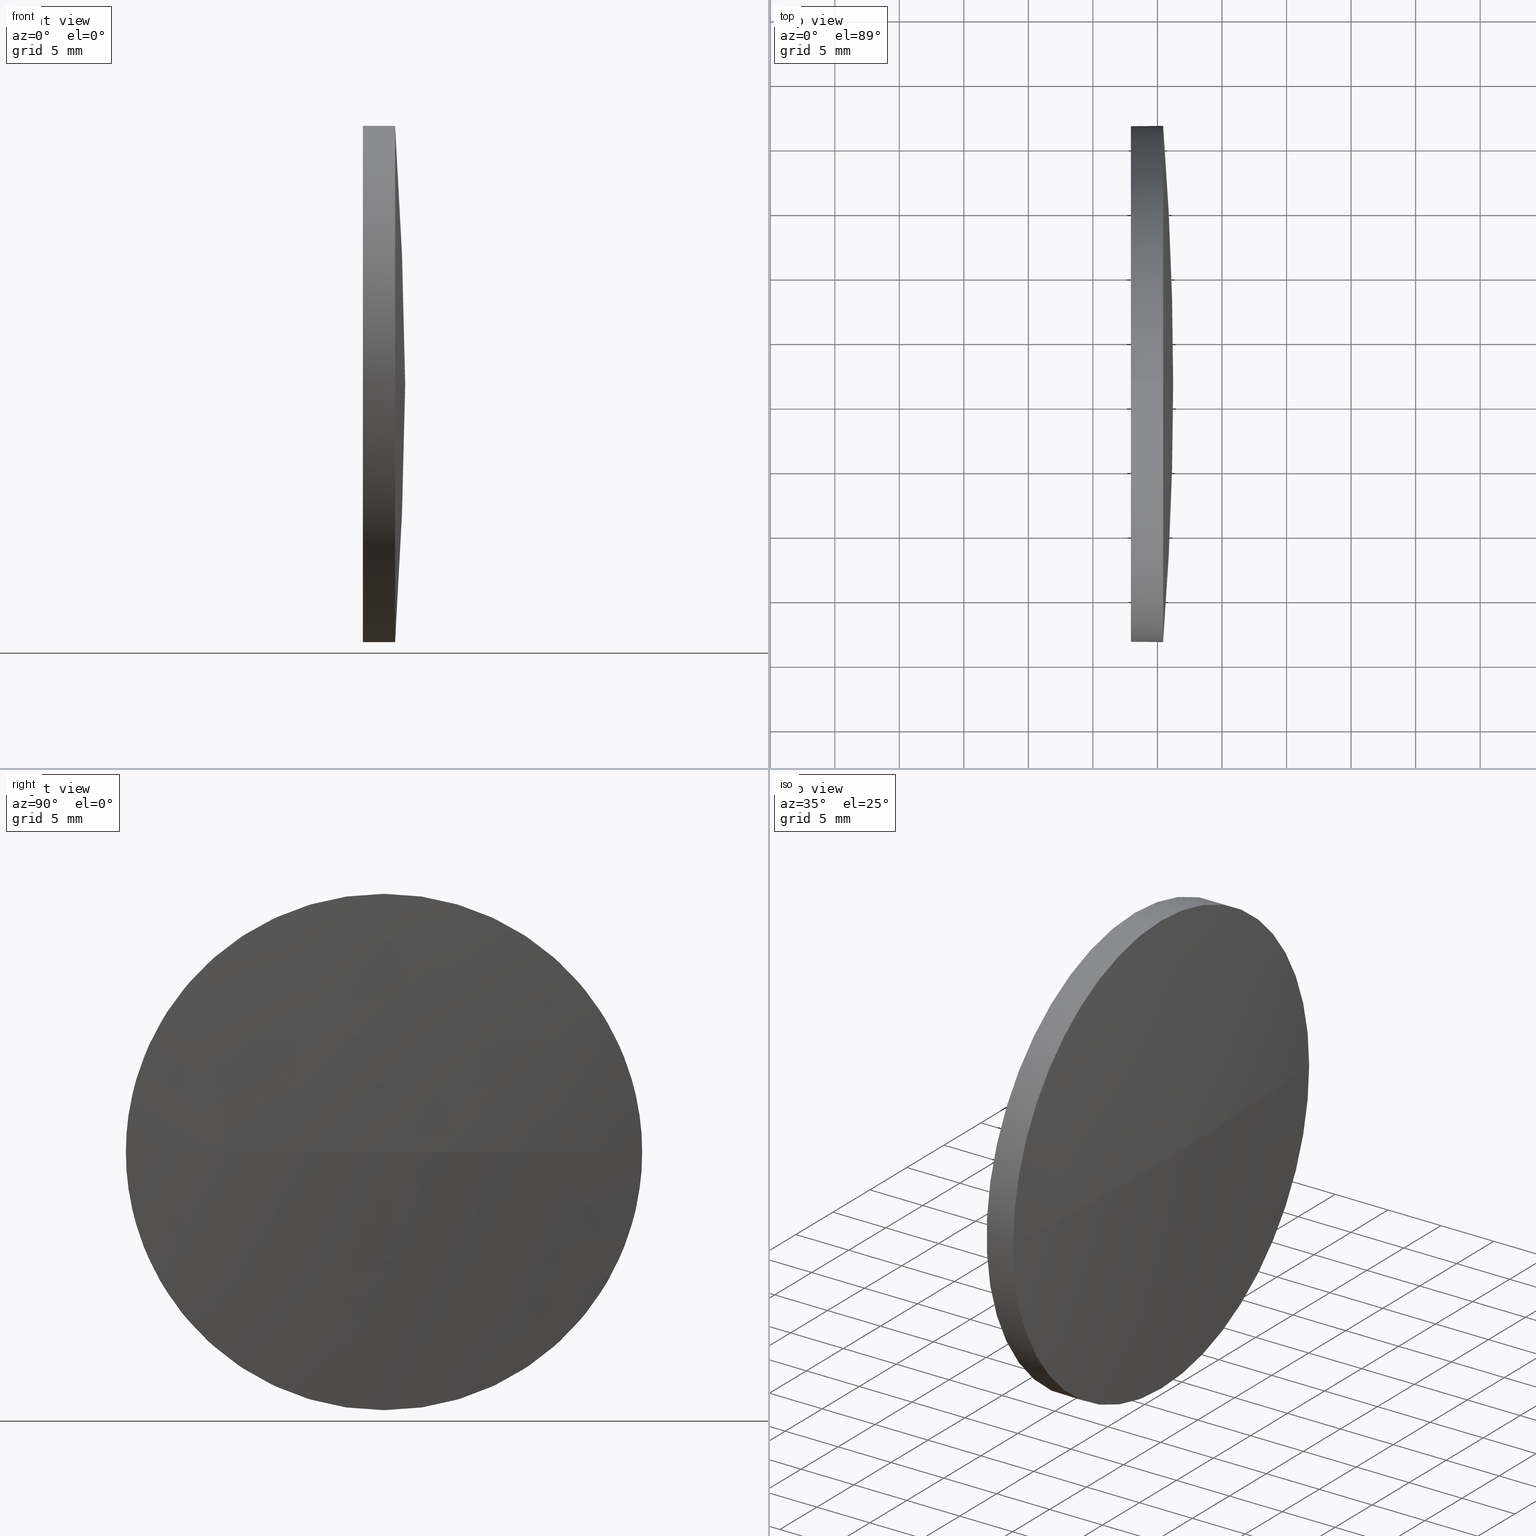
[diagram: canonical four-view strip — front | top / right | iso, engineering-drawing reading convention]
A machine part, canonical four-view strip (front | top / right | iso — engineering-drawing reading convention). The complete STEP part file that produces these views, byte-faithful:
ISO-10303-21;
HEADER;
FILE_DESCRIPTION (( 'STEP AP214' ),
    '1' );
FILE_NAME ('100149.STEP',
    '2019-05-15T08:41:53',
    ( '' ),
    ( '' ),
    'SwSTEP 2.0',
    'SolidWorks 2016',
    '' );
FILE_SCHEMA (( 'AUTOMOTIVE_DESIGN' ));
ENDSEC;

DATA;
#1 = SHAPE_DEFINITION_REPRESENTATION ( #131, #34 ) ;
#2 = ORIENTED_EDGE ( 'NONE', *, *, #169, .T. ) ;
#3 = SURFACE_STYLE_USAGE ( .BOTH. , #67 ) ;
#4 = EDGE_CURVE ( 'NONE', #172, #104, #97, .T. ) ;
#5 = VERTEX_POINT ( 'NONE', #10 ) ;
#6 = COLOUR_RGB ( '',1.000000000000000000, 1.000000000000000000, 1.000000000000000000 ) ;
#7 =( NAMED_UNIT ( * ) SI_UNIT ( $, .STERADIAN. ) SOLID_ANGLE_UNIT ( ) );
#8 = VECTOR ( 'NONE', #120, 1000.000000000000000 ) ;
#9 = DIRECTION ( 'NONE',  ( -1.000000000000000000, -0.0000000000000000000, -0.0000000000000000000 ) ) ;
#10 = CARTESIAN_POINT ( 'NONE',  ( 1332.934272124736000, 411.5874298332859700, -19.99999999999996100 ) ) ;
#11 = EDGE_CURVE ( 'NONE', #135, #5, #179, .T. ) ;
#12 = ADVANCED_FACE ( 'NONE', ( #132 ), #21, .T. ) ;
#13 = PLANE ( 'NONE',  #83 ) ;
#14 = DIRECTION ( 'NONE',  ( 0.0000000000000000000, 0.0000000000000000000, 1.000000000000000000 ) ) ;
#15 = COLOUR_RGB ( '',1.000000000000000000, 1.000000000000000000, 1.000000000000000000 ) ;
#16 = PRODUCT_DEFINITION ( 'δ֪', '', #65, #100 ) ;
#17 = CARTESIAN_POINT ( 'NONE',  ( 1328.239728944158700, 411.5874298332859700, 0.0000000000000000000 ) ) ;
#18 = ORIENTED_EDGE ( 'NONE', *, *, #148, .T. ) ;
#19 = CARTESIAN_POINT ( 'NONE',  ( 1335.434272124735800, 411.5874298332859700, 19.99999999999996100 ) ) ;
#20 = DIRECTION ( 'NONE',  ( 0.0000000000000000000, 0.0000000000000000000, 1.000000000000000000 ) ) ;
#21 = CYLINDRICAL_SURFACE ( 'NONE', #32, 19.99999999999996100 ) ;
#22 = UNCERTAINTY_MEASURE_WITH_UNIT (LENGTH_MEASURE( 1.000000000000000100E-005 ), #81, 'distance_accuracy_value', 'NONE');
#23 = CARTESIAN_POINT ( 'NONE',  ( 1335.434272124735800, 431.5874298332856300, 0.0000000000000000000 ) ) ;
#24 = ORIENTED_EDGE ( 'NONE', *, *, #108, .T. ) ;
#25 =( GEOMETRIC_REPRESENTATION_CONTEXT ( 3 ) GLOBAL_UNCERTAINTY_ASSIGNED_CONTEXT ( ( #118 ) ) GLOBAL_UNIT_ASSIGNED_CONTEXT ( ( #137, #141, #48 ) ) REPRESENTATION_CONTEXT ( 'NONE', 'WORKASPACE' ) );
#26 = ORIENTED_EDGE ( 'NONE', *, *, #55, .F. ) ;
#27 = CIRCLE ( 'NONE', #91, 19.99999999999996100 ) ;
#28 = FILL_AREA_STYLE_COLOUR ( '', #6 ) ;
#29 = CARTESIAN_POINT ( 'NONE',  ( 1332.934272124736000, 411.5874298332859700, 0.0000000000000000000 ) ) ;
#30 = ORIENTED_EDGE ( 'NONE', *, *, #160, .T. ) ;
#31 = DIRECTION ( 'NONE',  ( 0.0000000000000000000, 1.000000000000000000, 1.224646799147353200E-016 ) ) ;
#32 = AXIS2_PLACEMENT_3D ( 'NONE', #144, #51, #113 ) ;
#33 = DIRECTION ( 'NONE',  ( 0.0000000000000000000, 0.0000000000000000000, 1.000000000000000000 ) ) ;
#34 = ADVANCED_BREP_SHAPE_REPRESENTATION ( '100149', ( #58, #105 ), #25 ) ;
#35 = ADVANCED_FACE ( 'NONE', ( #124 ), #13, .F. ) ;
#36 = EDGE_LOOP ( 'NONE', ( #166, #164, #53, #50, #71 ) ) ;
#37 = DIRECTION ( 'NONE',  ( 0.0000000000000000000, 1.000000000000000000, 0.0000000000000000000 ) ) ;
#38 = CIRCLE ( 'NONE', #115, 19.99999999999996100 ) ;
#39 = CARTESIAN_POINT ( 'NONE',  ( 1335.434272124735800, 411.5874298332859700, 0.0000000000000000000 ) ) ;
#40 =( NAMED_UNIT ( * ) SI_UNIT ( $, .STERADIAN. ) SOLID_ANGLE_UNIT ( ) );
#41 = LINE ( 'NONE', #171, #8 ) ;
#42 = AXIS2_PLACEMENT_3D ( 'NONE', #125, #54, #52 ) ;
#43 = PRODUCT ( '100149', '100149', '', ( #101 ) ) ;
#44 = DIRECTION ( 'NONE',  ( 0.0000000000000000000, 0.0000000000000000000, 1.000000000000000000 ) ) ;
#45 = DIRECTION ( 'NONE',  ( 0.0000000000000000000, 1.000000000000000000, 0.0000000000000000000 ) ) ;
#46 = DIRECTION ( 'NONE',  ( -0.0000000000000000000, 0.0000000000000000000, -1.000000000000000000 ) ) ;
#47 = ORIENTED_EDGE ( 'NONE', *, *, #169, .F. ) ;
#48 =( NAMED_UNIT ( * ) SI_UNIT ( $, .STERADIAN. ) SOLID_ANGLE_UNIT ( ) );
#49 = CARTESIAN_POINT ( 'NONE',  ( 1328.239728944158700, 411.5874298332859700, -19.99999999999996100 ) ) ;
#50 = ORIENTED_EDGE ( 'NONE', *, *, #108, .F. ) ;
#51 = DIRECTION ( 'NONE',  ( -1.000000000000000000, -0.0000000000000000000, -0.0000000000000000000 ) ) ;
#52 = DIRECTION ( 'NONE',  ( 0.0000000000000000000, 0.0000000000000000000, 1.000000000000000000 ) ) ;
#53 = ORIENTED_EDGE ( 'NONE', *, *, #148, .F. ) ;
#54 = DIRECTION ( 'NONE',  ( -1.000000000000000000, -0.0000000000000000000, -0.0000000000000000000 ) ) ;
#55 = EDGE_CURVE ( 'NONE', #177, #172, #59, .T. ) ;
#56 = ADVANCED_FACE ( 'NONE', ( #61 ), #88, .T. ) ;
#57 = DIRECTION ( 'NONE',  ( -1.000000000000000000, -0.0000000000000000000, -0.0000000000000000000 ) ) ;
#58 = MANIFOLD_SOLID_BREP ( '��ת2', #98 ) ;
#59 = CIRCLE ( 'NONE', #158, 19.99999999999996100 ) ;
#60 = VERTEX_POINT ( 'NONE', #109 ) ;
#61 = FACE_OUTER_BOUND ( 'NONE', #143, .T. ) ;
#62 = DIRECTION ( 'NONE',  ( -1.000000000000000000, -0.0000000000000000000, -0.0000000000000000000 ) ) ;
#63 = CARTESIAN_POINT ( 'NONE',  ( 1079.414015714479800, 411.5874298332847200, 0.0000000000000000000 ) ) ;
#64 = EDGE_LOOP ( 'NONE', ( #18, #85 ) ) ;
#65 = PRODUCT_DEFINITION_FORMATION_WITH_SPECIFIED_SOURCE ( '�κ�', '', #43, .NOT_KNOWN. ) ;
#66 = DIRECTION ( 'NONE',  ( -0.0000000000000000000, 0.0000000000000000000, -1.000000000000000000 ) ) ;
#67 = SURFACE_SIDE_STYLE ('',( #138 ) ) ;
#68 = ORIENTED_EDGE ( 'NONE', *, *, #117, .F. ) ;
#69 = FACE_OUTER_BOUND ( 'NONE', #36, .T. ) ;
#70 = CARTESIAN_POINT ( 'NONE',  ( 1332.934272124736000, 411.5874298332859700, 0.0000000000000000000 ) ) ;
#71 = ORIENTED_EDGE ( 'NONE', *, *, #4, .T. ) ;
#72 = AXIS2_PLACEMENT_3D ( 'NONE', #184, #9, #152 ) ;
#73 = FILL_AREA_STYLE ('',( #28 ) ) ;
#74 = DIRECTION ( 'NONE',  ( -1.000000000000000000, -0.0000000000000000000, -0.0000000000000000000 ) ) ;
#75 = ORIENTED_EDGE ( 'NONE', *, *, #160, .F. ) ;
#76 = AXIS2_PLACEMENT_3D ( 'NONE', #63, #119, #182 ) ;
#77 = DIRECTION ( 'NONE',  ( -1.000000000000000000, -0.0000000000000000000, -0.0000000000000000000 ) ) ;
#78 = SPHERICAL_SURFACE ( 'NONE', #156, 256.8002564102561100 ) ;
#79 = CARTESIAN_POINT ( 'NONE',  ( 1335.434272124735800, 391.5874298332850600, -2.449293598294665500E-015 ) ) ;
#80 = CIRCLE ( 'NONE', #42, 19.99999999999996100 ) ;
#81 =( LENGTH_UNIT ( ) NAMED_UNIT ( * ) SI_UNIT ( .MILLI., .METRE. ) );
#82 = DIRECTION ( 'NONE',  ( 0.0000000000000000000, 0.0000000000000000000, -1.000000000000000000 ) ) ;
#83 = AXIS2_PLACEMENT_3D ( 'NONE', #70, #173, #82 ) ;
#84 =( GEOMETRIC_REPRESENTATION_CONTEXT ( 3 ) GLOBAL_UNCERTAINTY_ASSIGNED_CONTEXT ( ( #175 ) ) GLOBAL_UNIT_ASSIGNED_CONTEXT ( ( #181, #87, #7 ) ) REPRESENTATION_CONTEXT ( 'NONE', 'WORKASPACE' ) );
#85 = ORIENTED_EDGE ( 'NONE', *, *, #96, .T. ) ;
#86 = EDGE_CURVE ( 'NONE', #104, #135, #80, .T. ) ;
#87 =( NAMED_UNIT ( * ) PLANE_ANGLE_UNIT ( ) SI_UNIT ( $, .RADIAN. ) );
#88 = SPHERICAL_SURFACE ( 'NONE', #116, 256.8002564102561100 ) ;
#89 = CARTESIAN_POINT ( 'NONE',  ( 1332.934272124736000, 411.5874298332859700, 0.0000000000000000000 ) ) ;
#90 = ORIENTED_EDGE ( 'NONE', *, *, #11, .F. ) ;
#91 = AXIS2_PLACEMENT_3D ( 'NONE', #29, #74, #140 ) ;
#92 = DIRECTION ( 'NONE',  ( -1.000000000000000000, -0.0000000000000000000, -0.0000000000000000000 ) ) ;
#93 = ORIENTED_EDGE ( 'NONE', *, *, #86, .F. ) ;
#94 =( NAMED_UNIT ( * ) PLANE_ANGLE_UNIT ( ) SI_UNIT ( $, .RADIAN. ) );
#95 = PRESENTATION_STYLE_ASSIGNMENT (( #3 ) ) ;
#96 = EDGE_CURVE ( 'NONE', #5, #161, #27, .T. ) ;
#97 = CIRCLE ( 'NONE', #139, 19.99999999999996100 ) ;
#98 = CLOSED_SHELL ( 'NONE', ( #129, #112, #56, #12, #35 ) ) ;
#99 = PRODUCT_RELATED_PRODUCT_CATEGORY ( 'part', '', ( #43 ) ) ;
#100 = PRODUCT_DEFINITION_CONTEXT ( 'detailed design', #102, 'design' ) ;
#101 = PRODUCT_CONTEXT ( 'NONE', #150, 'mechanical' ) ;
#102 = APPLICATION_CONTEXT ( 'automotive_design' ) ;
#103 = APPLICATION_PROTOCOL_DEFINITION ( 'draft international standard', 'automotive_design', 1998, #102 ) ;
#104 = VERTEX_POINT ( 'NONE', #23 ) ;
#105 = AXIS2_PLACEMENT_3D ( 'NONE', #136, #44, #163 ) ;
#106 = FACE_OUTER_BOUND ( 'NONE', #183, .T. ) ;
#107 = CARTESIAN_POINT ( 'NONE',  ( 1079.414015714479800, 411.5874298332847200, 0.0000000000000000000 ) ) ;
#108 = EDGE_CURVE ( 'NONE', #172, #161, #41, .T. ) ;
#109 = CARTESIAN_POINT ( 'NONE',  ( 1336.214272124735800, 411.5874298332847200, 0.0000000000000000000 ) ) ;
#110 = ORIENTED_EDGE ( 'NONE', *, *, #117, .T. ) ;
#111 = CYLINDRICAL_SURFACE ( 'NONE', #167, 19.99999999999996100 ) ;
#112 = ADVANCED_FACE ( 'NONE', ( #106 ), #78, .T. ) ;
#113 = DIRECTION ( 'NONE',  ( 0.0000000000000000000, 0.0000000000000000000, 1.000000000000000000 ) ) ;
#114 = DIRECTION ( 'NONE',  ( -1.000000000000000000, -0.0000000000000000000, -0.0000000000000000000 ) ) ;
#115 = AXIS2_PLACEMENT_3D ( 'NONE', #89, #77, #33 ) ;
#116 = AXIS2_PLACEMENT_3D ( 'NONE', #130, #66, #37 ) ;
#117 = EDGE_CURVE ( 'NONE', #60, #177, #157, .T. ) ;
#118 = UNCERTAINTY_MEASURE_WITH_UNIT (LENGTH_MEASURE( 1.000000000000000100E-005 ), #137, 'distance_accuracy_value', 'NONE');
#119 = DIRECTION ( 'NONE',  ( -0.0000000000000000000, 0.0000000000000000000, 1.000000000000000000 ) ) ;
#120 = DIRECTION ( 'NONE',  ( -1.000000000000000000, -0.0000000000000000000, -0.0000000000000000000 ) ) ;
#121 = DIRECTION ( 'NONE',  ( 0.0000000000000000000, 1.224646799147353200E-016, -1.000000000000000000 ) ) ;
#122 = SURFACE_STYLE_FILL_AREA ( #73 ) ;
#123 = MECHANICAL_DESIGN_GEOMETRIC_PRESENTATION_REPRESENTATION (  '', ( #174 ), #147 ) ;
#124 = FACE_OUTER_BOUND ( 'NONE', #64, .T. ) ;
#125 = CARTESIAN_POINT ( 'NONE',  ( 1335.434272124735800, 411.5874298332859700, 0.0000000000000000000 ) ) ;
#126 = PRESENTATION_LAYER_ASSIGNMENT (  '', '', ( #134 ) ) ;
#127 = DIRECTION ( 'NONE',  ( 0.0000000000000000000, 0.0000000000000000000, 1.000000000000000000 ) ) ;
#128 = ORIENTED_EDGE ( 'NONE', *, *, #96, .F. ) ;
#129 = ADVANCED_FACE ( 'NONE', ( #69 ), #111, .T. ) ;
#130 = CARTESIAN_POINT ( 'NONE',  ( 1079.414015714479800, 411.5874298332847200, 0.0000000000000000000 ) ) ;
#131 = PRODUCT_DEFINITION_SHAPE ( 'NONE', 'NONE',  #16 ) ;
#132 = FACE_OUTER_BOUND ( 'NONE', #133, .T. ) ;
#133 = EDGE_LOOP ( 'NONE', ( #90, #2, #151, #24, #128 ) ) ;
#134 = STYLED_ITEM ( 'NONE', ( #155 ), #34 ) ;
#135 = VERTEX_POINT ( 'NONE', #154 ) ;
#136 = CARTESIAN_POINT ( 'NONE',  ( 0.0000000000000000000, 0.0000000000000000000, 0.0000000000000000000 ) ) ;
#137 =( LENGTH_UNIT ( ) NAMED_UNIT ( * ) SI_UNIT ( .MILLI., .METRE. ) );
#138 = SURFACE_STYLE_FILL_AREA ( #159 ) ;
#139 = AXIS2_PLACEMENT_3D ( 'NONE', #186, #92, #127 ) ;
#140 = DIRECTION ( 'NONE',  ( 0.0000000000000000000, 0.0000000000000000000, 1.000000000000000000 ) ) ;
#141 =( NAMED_UNIT ( * ) PLANE_ANGLE_UNIT ( ) SI_UNIT ( $, .RADIAN. ) );
#142 = FILL_AREA_STYLE_COLOUR ( '', #15 ) ;
#143 = EDGE_LOOP ( 'NONE', ( #68, #30, #146, #26 ) ) ;
#144 = CARTESIAN_POINT ( 'NONE',  ( 1328.239728944158700, 411.5874298332859700, 0.0000000000000000000 ) ) ;
#145 = AXIS2_PLACEMENT_3D ( 'NONE', #165, #121, #31 ) ;
#146 = ORIENTED_EDGE ( 'NONE', *, *, #4, .F. ) ;
#147 =( GEOMETRIC_REPRESENTATION_CONTEXT ( 3 ) GLOBAL_UNCERTAINTY_ASSIGNED_CONTEXT ( ( #22 ) ) GLOBAL_UNIT_ASSIGNED_CONTEXT ( ( #81, #94, #40 ) ) REPRESENTATION_CONTEXT ( 'NONE', 'WORKASPACE' ) );
#148 = EDGE_CURVE ( 'NONE', #161, #5, #38, .T. ) ;
#149 = SURFACE_SIDE_STYLE ('',( #122 ) ) ;
#150 = APPLICATION_CONTEXT ( 'automotive_design' ) ;
#151 = ORIENTED_EDGE ( 'NONE', *, *, #55, .T. ) ;
#152 = DIRECTION ( 'NONE',  ( 0.0000000000000000000, 0.0000000000000000000, 1.000000000000000000 ) ) ;
#153 = CIRCLE ( 'NONE', #76, 256.8002564102560500 ) ;
#154 = CARTESIAN_POINT ( 'NONE',  ( 1335.434272124735800, 411.5874298332859700, -19.99999999999996100 ) ) ;
#155 = PRESENTATION_STYLE_ASSIGNMENT (( #180 ) ) ;
#156 = AXIS2_PLACEMENT_3D ( 'NONE', #107, #46, #45 ) ;
#157 = CIRCLE ( 'NONE', #145, 256.8002564102561100 ) ;
#158 = AXIS2_PLACEMENT_3D ( 'NONE', #39, #114, #14 ) ;
#159 = FILL_AREA_STYLE ('',( #142 ) ) ;
#160 = EDGE_CURVE ( 'NONE', #60, #104, #153, .T. ) ;
#161 = VERTEX_POINT ( 'NONE', #168 ) ;
#162 = APPLICATION_PROTOCOL_DEFINITION ( 'draft international standard', 'automotive_design', 1998, #150 ) ;
#163 = DIRECTION ( 'NONE',  ( 1.000000000000000000, 0.0000000000000000000, 0.0000000000000000000 ) ) ;
#164 = ORIENTED_EDGE ( 'NONE', *, *, #11, .T. ) ;
#165 = CARTESIAN_POINT ( 'NONE',  ( 1079.414015714479800, 411.5874298332847200, 0.0000000000000000000 ) ) ;
#166 = ORIENTED_EDGE ( 'NONE', *, *, #86, .T. ) ;
#167 = AXIS2_PLACEMENT_3D ( 'NONE', #17, #62, #20 ) ;
#168 = CARTESIAN_POINT ( 'NONE',  ( 1332.934272124736000, 411.5874298332859700, 19.99999999999996100 ) ) ;
#169 = EDGE_CURVE ( 'NONE', #135, #177, #176, .T. ) ;
#170 = VECTOR ( 'NONE', #57, 1000.000000000000000 ) ;
#171 = CARTESIAN_POINT ( 'NONE',  ( 1328.239728944158700, 411.5874298332859700, 19.99999999999996100 ) ) ;
#172 = VERTEX_POINT ( 'NONE', #19 ) ;
#173 = DIRECTION ( 'NONE',  ( 1.000000000000000000, 0.0000000000000000000, 0.0000000000000000000 ) ) ;
#174 = STYLED_ITEM ( 'NONE', ( #95 ), #58 ) ;
#175 = UNCERTAINTY_MEASURE_WITH_UNIT (LENGTH_MEASURE( 1.000000000000000100E-005 ), #181, 'distance_accuracy_value', 'NONE');
#176 = CIRCLE ( 'NONE', #72, 19.99999999999996100 ) ;
#177 = VERTEX_POINT ( 'NONE', #79 ) ;
#178 = MECHANICAL_DESIGN_GEOMETRIC_PRESENTATION_REPRESENTATION (  '', ( #134 ), #84 ) ;
#179 = LINE ( 'NONE', #49, #170 ) ;
#180 = SURFACE_STYLE_USAGE ( .BOTH. , #149 ) ;
#181 =( LENGTH_UNIT ( ) NAMED_UNIT ( * ) SI_UNIT ( .MILLI., .METRE. ) );
#182 = DIRECTION ( 'NONE',  ( 1.000000000000000000, 0.0000000000000000000, 0.0000000000000000000 ) ) ;
#183 = EDGE_LOOP ( 'NONE', ( #75, #110, #47, #93 ) ) ;
#184 = CARTESIAN_POINT ( 'NONE',  ( 1335.434272124735800, 411.5874298332859700, 0.0000000000000000000 ) ) ;
#185 = PRESENTATION_LAYER_ASSIGNMENT (  '', '', ( #174 ) ) ;
#186 = CARTESIAN_POINT ( 'NONE',  ( 1335.434272124735800, 411.5874298332859700, 0.0000000000000000000 ) ) ;
ENDSEC;
END-ISO-10303-21;
